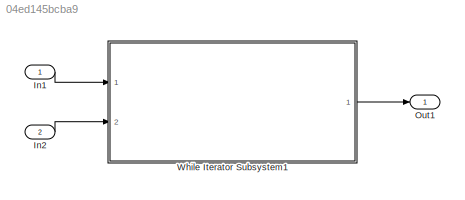
MODEL slx_04ed145bcba9
KIND model
CONFIG AbsTol = auto
CONFIG EnableMultiTasking = off
CONFIG FixedStep = auto
CONFIG MaxStep = auto
CONFIG MinStep = auto
CONFIG RelTol = 1e-3
CONFIG SampleTimeConstraint = Unconstrained
CONFIG Solver = FixedStepDiscrete
CONFIG SolverName = FixedStepDiscrete
CONFIG StartTime = 0.0
CONFIG StopTime = 10.0
BLOCK [Inport] In1
  IconDisplay = Port number
BLOCK [Inport] In2
  IconDisplay = Port number
  Port = 2
BLOCK [Outport] Out1
  IconDisplay = Port number
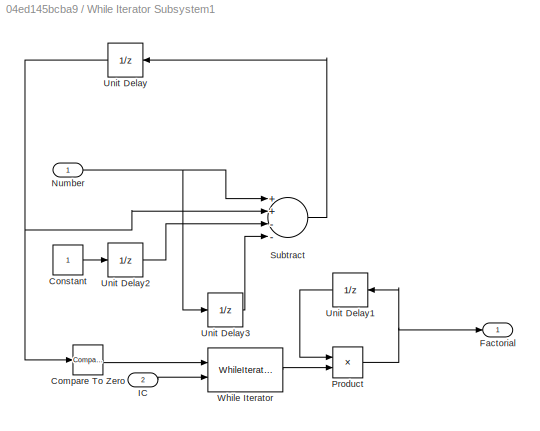
BLOCK [SubSystem] While Iterator Subsystem1
  Ports = [2, 1]
  RequestExecContextInheritance = off
  TreatAsAtomicUnit = on
  Variant = off
BLOCK [Reference] While Iterator Subsystem1/Compare To Zero  REF=simulink/Logic and Bit
Operations/Compare
To Zero
  Ports = [1, 1]
  SourceBlock = simulink/Logic and Bit\nOperations/Compare\nTo Zero
  SourceType = Compare To Zero
BLOCK [Constant] While Iterator Subsystem1/Constant
BLOCK [Outport] While Iterator Subsystem1/Factorial
  IconDisplay = Port number
BLOCK [Inport] While Iterator Subsystem1/IC
  IconDisplay = Port number
  Port = 2
BLOCK [Inport] While Iterator Subsystem1/Number
  IconDisplay = Port number
BLOCK [Product] While Iterator Subsystem1/Product
  InputSameDT = off
  OutDataTypeStr = Inherit: Inherit via internal rule
  Ports = [2, 1]
  RndMeth = Floor
  SaturateOnIntegerOverflow = off
BLOCK [Sum] While Iterator Subsystem1/Subtract
  InputSameDT = off
  Inputs = ++--
  OutDataTypeStr = Inherit: Inherit via internal rule
  Ports = [4, 1]
  SaturateOnIntegerOverflow = off
BLOCK [UnitDelay] While Iterator Subsystem1/Unit Delay
  InputProcessing = Elements as channels (sample based)
  SampleTime = -1
BLOCK [UnitDelay] While Iterator Subsystem1/Unit Delay1
  InitialCondition = 1
  InputProcessing = Elements as channels (sample based)
  SampleTime = -1
BLOCK [UnitDelay] While Iterator Subsystem1/Unit Delay2
  InputProcessing = Elements as channels (sample based)
  SampleTime = -1
BLOCK [UnitDelay] While Iterator Subsystem1/Unit Delay3
  InputProcessing = Elements as channels (sample based)
  SampleTime = -1
BLOCK [WhileIterator] While Iterator Subsystem1/While Iterator
  MaxIters = 6
  OutputDataType = double
  Ports = [2, 1]
  ShowIterationPort = on
LINE In1:1 -> While Iterator Subsystem1:1
LINE In2:1 -> While Iterator Subsystem1:2
LINE While Iterator Subsystem1/Compare To Zero:1 -> While Iterator Subsystem1/While Iterator:1
LINE While Iterator Subsystem1/Constant:1 -> While Iterator Subsystem1/Unit Delay2:1
LINE While Iterator Subsystem1/IC:1 -> While Iterator Subsystem1/While Iterator:2
NET While Iterator Subsystem1/Number:1 -> While Iterator Subsystem1/Subtract:1, While Iterator Subsystem1/Unit Delay3:1
NET While Iterator Subsystem1/Product:1 -> While Iterator Subsystem1/Factorial:1, While Iterator Subsystem1/Unit Delay1:1
LINE While Iterator Subsystem1/Subtract:1 -> While Iterator Subsystem1/Unit Delay:1
LINE While Iterator Subsystem1/Unit Delay1:1 -> While Iterator Subsystem1/Product:1
LINE While Iterator Subsystem1/Unit Delay2:1 -> While Iterator Subsystem1/Subtract:3
LINE While Iterator Subsystem1/Unit Delay3:1 -> While Iterator Subsystem1/Subtract:4
NET While Iterator Subsystem1/Unit Delay:1 -> While Iterator Subsystem1/Compare To Zero:1, While Iterator Subsystem1/Subtract:2
LINE While Iterator Subsystem1/While Iterator:1 -> While Iterator Subsystem1/Product:2
LINE While Iterator Subsystem1:1 -> Out1:1
note: NET lines group one-source signal fan-out (src -> all destinations, sorted); 1:1 wires keep LINE
